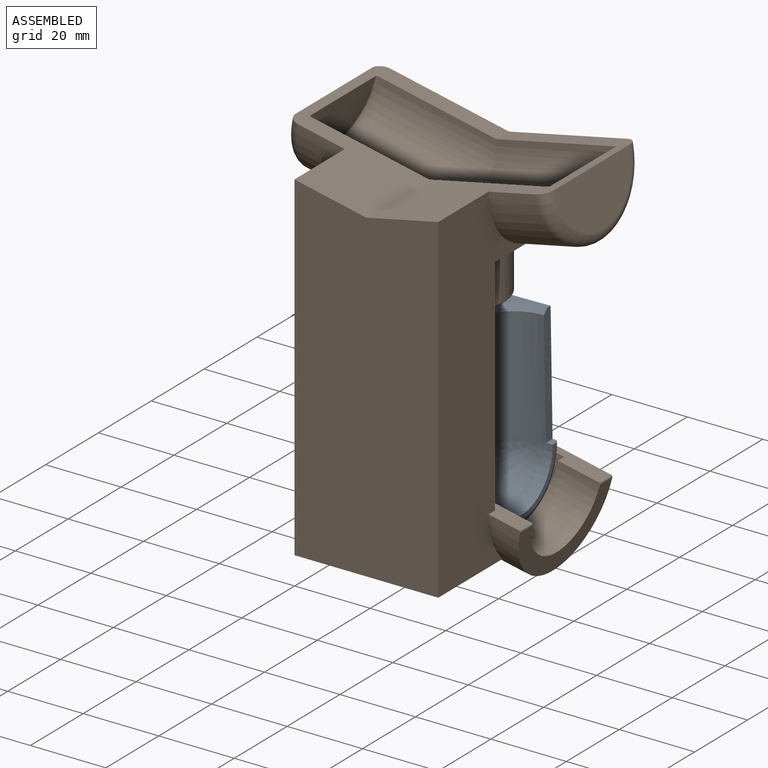
[diagram: assembled view]
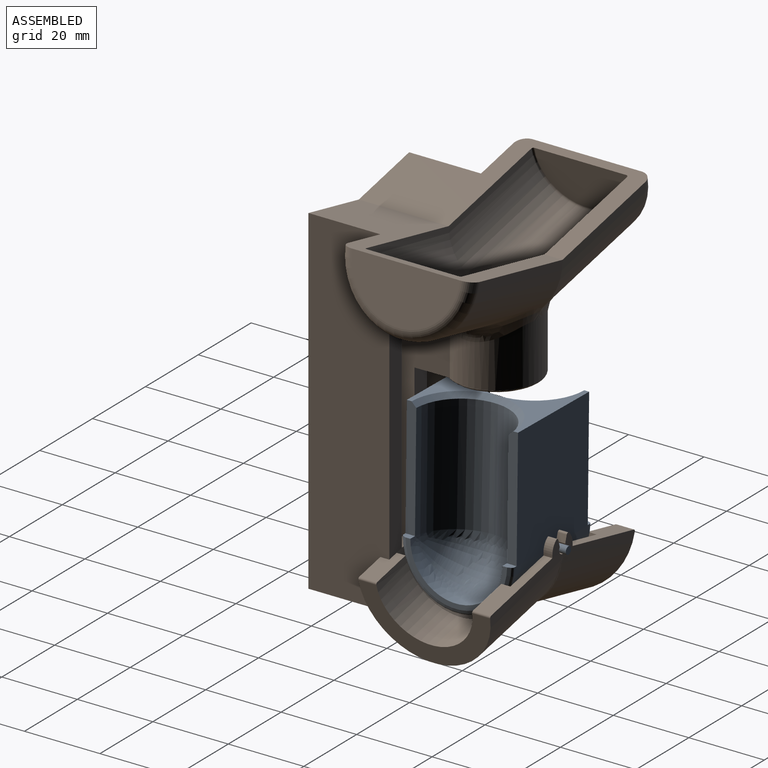
[diagram: assembled view, second angle]
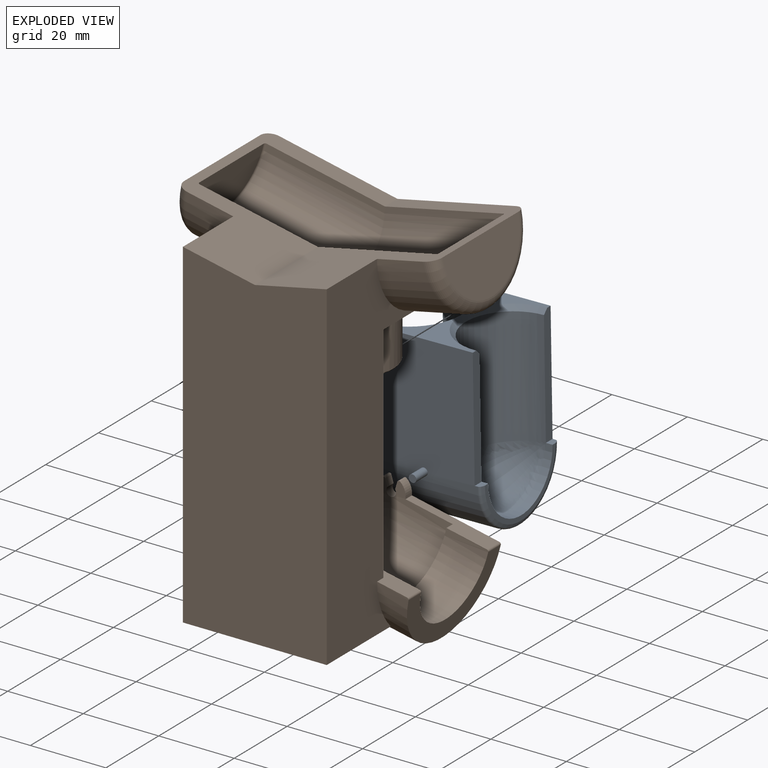
[diagram: exploded view]
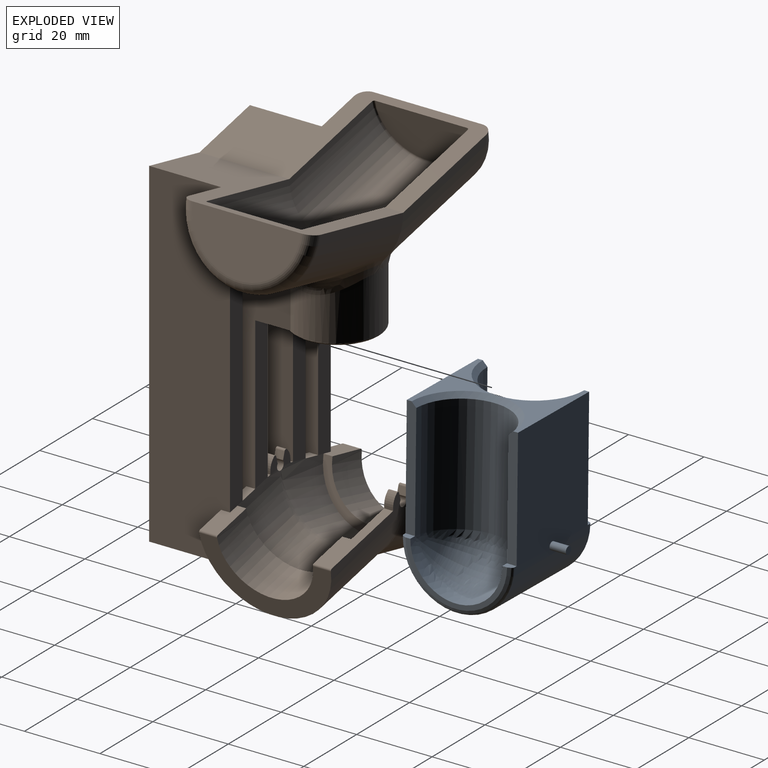
[diagram: exploded view, second angle]
ASSEMBLY  parts=2 mates=2
PART A: 31 faces, bbox 38.1x30.5x47.7 mm
  f0: plane 26.92x14.73mm, normal (0,0,1), area 112mm2, adj f17,f22,f23,f27,f28
  f1: cylinder r=12.19mm len=24.38mm, axis (0,1,0), area 86.7mm2, adj f4,f7,f11,f26
  f2: cylinder r=1.02mm len=4.35mm, axis (-1,0,0), area 27.6mm2, adj f8,f12,f16
  f3: plane 2.54x1.78mm, normal (0,0,1), area 4.1mm2, adj f6,f8,f10,f14,f22,f29
  f4: plane 2.54x1.78mm, normal (0,0,1), area 4.1mm2, adj f1,f8,f11,f15,f19,f30
  f5: cylinder r=1.02mm len=4.35mm, axis (-1,0,0), area 27.6mm2, adj f8,f13,f17
  f6: cylinder r=12.19mm len=24.38mm, axis (0,1,0), area 86.7mm2, adj f3,f9,f10,f25
  f7: plane 2.54x1.78mm, normal (0,0,1), area 4.1mm2, adj f1,f8,f11,f15,f23,f30
  f8: cylinder r=14.73mm len=29.46mm, axis (0,1,0), area 1312.7mm2, adj f2,f3,f4,f5,f7,f9,f16,f17
  f9: plane 2.54x1.78mm, normal (0,0,1), area 4.1mm2, adj f6,f8,f10,f14,f18,f29
  f10: plane 26.92x13.46mm, normal (0,-1,0), area 51.2mm2, adj f3,f6,f9,f14
  f11: plane 26.92x13.46mm, normal (0,1,0), area 51.2mm2, adj f1,f4,f7,f15
  f12: plane 2.03x2.03mm, normal (1,0,0), area 3.2mm2, adj f2
  f13: plane 2.03x2.03mm, normal (-1,0,0), area 3.2mm2, adj f5
  f14: cone r=13.46mm half-angle=68.2deg, axis (0,1,0), area 37.1mm2, adj f3,f9,f10,f29
  f15: cone r=14.73mm half-angle=68.2deg, axis (0,-1,0), area 37.1mm2, adj f4,f7,f11,f30
  f16: plane 31.75x26.92mm, normal (1,0,0), area 853.2mm2, adj f2,f8,f18,f19,f24
  f17: plane 31.75x26.92mm, normal (-1,0,0), area 853.2mm2, adj f0,f5,f8,f22,f23
  f18: plane 31.75x2.54mm, normal (0,-1,0), area 79.8mm2, adj f9,f16,f20,f24,f27
  f19: plane 31.75x2.54mm, normal (0,1,0), area 79.8mm2, adj f4,f16,f21,f24,f28
  f20: cylinder r=12.19mm len=31.24mm, axis (0,0,1), area 1186mm2, adj f18,f22,f25,f27
  f21: cylinder r=12.19mm len=31.24mm, axis (0,0,1), area 1186mm2, adj f19,f23,f26,f28
  f22: plane 31.75x2.54mm, normal (0,-1,0), area 79.8mm2, adj f0,f3,f17,f20,f27
  f23: plane 31.75x2.54mm, normal (0,1,0), area 79.8mm2, adj f0,f7,f17,f21,f28
  f24: plane 26.92x14.73mm, normal (0,0,1), area 112mm2, adj f16,f18,f19,f27,f28
  f25: bspline ~24.38x12.19mm, area 440.6mm2, adj f6,f20
  f26: bspline ~24.38x12.19mm, area 440.6mm2, adj f1,f21
  f27: cone r=13.46mm half-angle=45deg, axis (0,0,1), area 72.4mm2, adj f0,f18,f20,f22,f24
  f28: cone r=12.19mm half-angle=45deg, axis (0,0,1), area 72.4mm2, adj f0,f19,f21,f23,f24
  f29: torus R=13.97mm, axis (0,-1,0), area 41.5mm2, adj f3,f8,f9,f14
  f30: torus R=13.97mm, axis (0,1,0), area 41.5mm2, adj f4,f7,f8,f15
PART B: 124 faces, bbox 57x76.5x100.9 mm
  f0: plane 84.64x30.87mm, normal (0,1,0), area 1414.4mm2, adj f5,f9,f22,f28,f30,f32,f97,f116
  f1: plane 0.56x0.32mm, normal (0,1,0), area 0.1mm2, adj f7,f78,f119
  f2: plane 82.05x21.97mm, normal (0,1,0), area 1444.8mm2, adj f6,f8,f21,f25,f26,f27,f35,f98
  f3: plane 0.12x0.09mm, normal (0,-1,0), area 0mm2, adj f7,f78,f123
  f4: plane 83.26x26.48mm, normal (0,-1,0), area 1534.7mm2, adj f5,f9,f22,f26,f30,f32,f91,f98
  f5: plane 83.82x4.76mm, normal (1,0,0), area 396.8mm2, adj f0,f4,f116,f122
  f6: plane 81.79x9.53mm, normal (1,0,0), area 774.3mm2, adj f2,f17,f114,f115,f117
  f7: cylinder r=17.46mm len=34.93mm, axis (0,0.98,0.21), area 1055.7mm2, adj f1,f3,f19,f23,f36,f37,f39,f49
  f8: cylinder r=17.46mm len=14.94mm, axis (0,0.98,0.21), area 67mm2, adj f2,f20,f35,f60,f65,f117
  f9: cylinder r=17.46mm len=13.15mm, axis (0,0.98,0.21), area 61mm2, adj f0,f4,f32,f122
  f10: cylinder r=17.46mm len=34.93mm, axis (0,-0.98,0.21), area 1055.7mm2, adj f14,f16,f19,f43,f44,f45,f48,f49
  f11: cylinder r=17.46mm len=13.15mm, axis (0,-0.98,0.21), area 61mm2, adj f13,f15,f34,f121
  f12: cylinder r=17.46mm len=14.94mm, axis (0,-0.98,0.21), area 67mm2, adj f17,f20,f33,f59,f60,f117
  f13: plane 84.64x30.87mm, normal (0,-1,0), area 1414.4mm2, adj f11,f18,f34,f79,f107,f109,f112,f113
  f14: plane 0.12x0.09mm, normal (0,1,0), area 0mm2, adj f10,f78,f120
  f15: plane 83.26x26.48mm, normal (0,1,0), area 1534.7mm2, adj f11,f18,f34,f81,f91,f104,f109,f112
  f16: plane 0.56x0.32mm, normal (0,-1,0), area 0.1mm2, adj f10,f78,f118
  f17: plane 82.05x21.97mm, normal (0,-1,0), area 1444.8mm2, adj f6,f12,f27,f33,f81,f104,f108,f111
  f18: plane 83.82x4.76mm, normal (1,0,0), area 396.8mm2, adj f13,f15,f113,f121
  f19: bspline ~26.2x18.08mm, area 53.8mm2, adj f7,f10,f49,f118,f119
  f20: bspline ~15.36x8.32mm, area 14.4mm2, adj f8,f12,f60,f117
  f21: cylinder r=17.46mm len=11.5mm, axis (0,-0.98,0.21), area 55.4mm2, adj f2,f25,f108,f115
  f22: cylinder r=17.46mm len=15.56mm, axis (0,-0.98,0.21), area 88.6mm2, adj f0,f4,f30,f116
  f23: plane 91.53x38.07mm, normal (0,-1,0), area 1942.7mm2, adj f7,f24,f28,f29,f36,f78,f87,f97
  f24: plane 89.97x38.1mm, normal (-1,0,0), area 3350.6mm2, adj f23,f78,f80,f87,f105
  f25: bspline ~9.54x4.46mm, area 20.6mm2, adj f2,f21,f27,f111
  f26: plane 40.35x4.76mm, normal (1,0,0), area 189.8mm2, adj f2,f4,f40,f98
  f27: cylinder r=11.11mm len=14.71mm, axis (0,0,-1), area 144.6mm2, adj f2,f17,f25,f96,f111
  f28: plane 59.41x4.76mm, normal (1,0,0), area 278.1mm2, adj f0,f23,f36,f40,f97
  f29: cylinder r=17.46mm len=37.4mm, axis (0,-0.98,0.21), area 1167.6mm2, adj f23,f30,f87,f95,f97,f106
  f30: bspline ~23.21x17.41mm, area 162.3mm2, adj f0,f4,f22,f29,f91,f97,f112
  f31: cylinder r=12.7mm len=35.92mm, axis (0,-0.98,0.21), area 1200.2mm2, adj f87,f93,f94,f110
  f32: plane 4.76x2.38mm, normal (0,-0.21,0.98), area 11.6mm2, adj f0,f4,f9,f40
  f33: plane 2.38x0.95mm, normal (0,0.21,0.98), area 2.3mm2, adj f12,f17,f46,f63
  f34: plane 4.76x2.38mm, normal (0,0.21,0.98), area 11.6mm2, adj f11,f13,f15,f46
  f35: plane 2.38x0.95mm, normal (0,-0.21,0.98), area 2.3mm2, adj f2,f8,f40,f69
  f36: plane 10.68x4.76mm, normal (0,-0.21,0.98), area 45.3mm2, adj f7,f23,f28,f38,f41,f84
  f37: plane 23.18x4.93mm, normal (0,-0.21,0.98), area 82.4mm2, adj f7,f38,f40,f41,f57,f85
  f38: cylinder r=12.7mm len=25.4mm, axis (0,0.98,0.21), area 455.8mm2, adj f36,f37,f39,f41,f84,f85
  f39: plane 34.91x16.58mm, normal (0,-0.98,-0.21), area 220.8mm2, adj f7,f38,f84,f85
  f40: cylinder r=15.08mm len=30.16mm, axis (0,0.98,0.21), area 659mm2, adj f26,f28,f32,f35,f37,f41,f49,f58
  f41: plane 30.16x14.75mm, normal (0,0.98,0.21), area 103.9mm2, adj f36,f37,f38,f40
  f42: cylinder r=12.7mm len=25.4mm, axis (0,-0.98,0.21), area 455.8mm2, adj f43,f44,f45,f47,f82,f83
  f43: plane 23.18x4.93mm, normal (0,0.21,0.98), area 82.4mm2, adj f10,f42,f46,f47,f51,f82
  f44: plane 10.68x4.76mm, normal (0,0.21,0.98), area 45.3mm2, adj f10,f42,f47,f79,f80,f83
  f45: plane 34.91x16.58mm, normal (0,0.98,-0.21), area 220.8mm2, adj f10,f42,f82,f83
  f46: cylinder r=15.08mm len=30.16mm, axis (0,-0.98,0.21), area 659mm2, adj f33,f34,f43,f47,f49,f53,f60,f61
  f47: plane 30.16x14.75mm, normal (0,-0.98,0.21), area 103.9mm2, adj f42,f43,f44,f46
  f48: plane 3.89x2.77mm, normal (1,0,0), area 7.6mm2, adj f10,f49,f50,f51,f52,f73,f77
  f49: cylinder r=1.27mm len=2.54mm, axis (-1,0,0), area 12.9mm2, adj f7,f10,f19,f40,f46,f48,f53,f54
  f50: plane 2.38x1.84mm, normal (0,-0.96,0.28), area 4.6mm2, adj f48,f53,f73,f77
  f51: plane 2.38x0.81mm, normal (0,1,0), area 1.9mm2, adj f43,f48,f52,f53
  f52: cylinder r=3.81mm len=2.97mm, axis (-1,0,0), area 8.1mm2, adj f48,f51,f53,f73
  f53: plane 3.89x2.77mm, normal (-1,0,0), area 7.6mm2, adj f46,f49,f50,f51,f52,f73,f77
  f54: plane 3.89x2.77mm, normal (1,0,0), area 7.6mm2, adj f7,f49,f55,f56,f57,f72,f76
  f55: plane 2.38x1.84mm, normal (0,0.96,0.28), area 4.6mm2, adj f54,f58,f72,f76
  f56: cylinder r=3.81mm len=2.97mm, axis (-1,0,0), area 8.1mm2, adj f54,f57,f58,f72
  f57: plane 2.38x0.81mm, normal (0,-1,0), area 1.9mm2, adj f37,f54,f56,f58
  f58: plane 3.89x2.77mm, normal (-1,0,0), area 7.6mm2, adj f40,f49,f55,f56,f57,f72,f76
  f59: plane 3.89x2.77mm, normal (-1,0,0), area 7.6mm2, adj f12,f60,f62,f63,f64,f71,f75
  f60: cylinder r=1.27mm len=2.54mm, axis (1,0,0), area 12.9mm2, adj f8,f12,f20,f40,f46,f59,f61,f65
  f61: plane 3.89x2.77mm, normal (1,0,0), area 7.6mm2, adj f46,f60,f62,f63,f64,f71,f75
  f62: plane 2.38x1.84mm, normal (0,-0.96,0.28), area 4.6mm2, adj f59,f61,f71,f75
  f63: plane 2.38x0.81mm, normal (0,1,0), area 1.9mm2, adj f33,f59,f61,f64
  f64: cylinder r=3.81mm len=2.97mm, axis (1,0,0), area 8.1mm2, adj f59,f61,f63,f71
  f65: plane 3.89x2.77mm, normal (-1,0,0), area 7.6mm2, adj f8,f60,f66,f67,f69,f70,f74
  f66: plane 2.38x1.84mm, normal (0,0.96,0.28), area 4.6mm2, adj f65,f68,f70,f74
  f67: cylinder r=3.81mm len=2.97mm, axis (1,0,0), area 8.1mm2, adj f65,f68,f69,f70
  f68: plane 3.89x2.77mm, normal (1,0,0), area 7.6mm2, adj f40,f60,f66,f67,f69,f70,f74
  f69: plane 2.38x0.81mm, normal (0,-1,0), area 1.9mm2, adj f35,f65,f67,f68
  f70: cylinder r=0.51mm len=2.38mm, axis (1,0,0), area 2.4mm2, adj f65,f66,f67,f68
  f71: cylinder r=0.51mm len=2.38mm, axis (1,0,0), area 2.4mm2, adj f59,f61,f62,f64
  f72: cylinder r=0.51mm len=2.38mm, axis (-1,0,0), area 2.4mm2, adj f54,f55,f56,f58
  f73: cylinder r=0.51mm len=2.38mm, axis (-1,0,0), area 2.4mm2, adj f48,f50,f52,f53
  f74: cylinder r=0.25mm len=2.38mm, axis (1,0,0), area 0.5mm2, adj f60,f65,f66,f68
  f75: cylinder r=0.25mm len=2.38mm, axis (1,0,0), area 0.5mm2, adj f59,f60,f61,f62
  f76: cylinder r=0.25mm len=2.38mm, axis (-1,0,0), area 0.5mm2, adj f49,f54,f55,f58
  f77: cylinder r=0.25mm len=2.38mm, axis (-1,0,0), area 0.5mm2, adj f48,f49,f50,f53
  f78: plane 38.21x29mm, normal (0,0,-1), area 1013.6mm2, adj f1,f3,f7,f10,f14,f16,f23,f24
  f79: plane 59.41x4.76mm, normal (1,0,0), area 278.1mm2, adj f13,f44,f46,f80,f107
  f80: plane 91.53x38.07mm, normal (0,1,0), area 1942.7mm2, adj f10,f24,f44,f78,f79,f105,f106,f107
  f81: plane 40.35x4.76mm, normal (1,0,0), area 189.8mm2, adj f15,f17,f46,f104
  f82: cylinder r=0.51mm len=4.77mm, axis (-1,0,0), area 3.8mm2, adj f10,f42,f43,f45
  f83: cylinder r=0.51mm len=4.77mm, axis (-1,0,0), area 3.8mm2, adj f10,f42,f44,f45
  f84: cylinder r=0.51mm len=4.77mm, axis (-1,0,0), area 3.8mm2, adj f7,f36,f38,f39
  f85: cylinder r=0.51mm len=4.77mm, axis (-1,0,0), area 3.8mm2, adj f7,f37,f38,f39
  f86: bspline ~30.16x15.64mm, area 64.4mm2, adj f40,f46,f49,f60
  f87: plane 53.98x34.23mm, normal (0,0.21,0.98), area 765mm2, adj f23,f24,f29,f31,f88,f89,f94,f95
  f88: plane 24.38x11.93mm, normal (0,0.98,-0.21), area 233.5mm2, adj f87,f94
  f89: plane 28.83x14.1mm, normal (0,-0.98,0.21), area 326.4mm2, adj f87,f95
  f90: cylinder r=6.35mm len=17.43mm, axis (0,0,-1), area 695.3mm2, adj f92,f93,f103
  f91: cylinder r=11.11mm len=22.23mm, axis (0,0,-1), area 631.5mm2, adj f4,f15,f30,f96,f112
  f92: plane 21.21x21.21mm, normal (0,0,-1), area 226.6mm2, adj f90,f96
  f93: bspline ~16.35x12.41mm, area 130mm2, adj f31,f90,f103
  f94: torus R=12.19mm, axis (0,-0.98,0.21), area 31.4mm2, adj f31,f87,f88
  f95: torus R=14.41mm, axis (0,-0.98,0.21), area 246mm2, adj f29,f87,f89
  f96: torus R=10.6mm, axis (0,0,1), area 54.8mm2, adj f27,f91,f92,f98,f104
  f97: plane 15.12x4.8mm, normal (0,-0.21,-0.98), area 72.5mm2, adj f0,f23,f28,f29,f30
  f98: plane 9.36x4.76mm, normal (0,0,-1), area 32.2mm2, adj f2,f4,f26,f96
  f99: plane 24.38x11.93mm, normal (0,-0.98,-0.21), area 233.5mm2, adj f100,f105
  f100: torus R=12.19mm, axis (0,0.98,0.21), area 31.4mm2, adj f99,f105,f110
  f101: torus R=14.41mm, axis (0,0.98,0.21), area 246mm2, adj f102,f105,f106
  f102: plane 28.83x14.1mm, normal (0,0.98,0.21), area 326.4mm2, adj f101,f105
  f103: bspline ~16.35x12.41mm, area 130mm2, adj f90,f93,f110
  f104: plane 9.36x4.76mm, normal (0,0,-1), area 32.2mm2, adj f15,f17,f81,f96
  f105: plane 53.98x34.23mm, normal (0,-0.21,0.98), area 765mm2, adj f24,f80,f87,f99,f100,f101,f102,f106
  f106: cylinder r=17.46mm len=37.4mm, axis (0,0.98,0.21), area 1167.6mm2, adj f29,f80,f101,f105,f107,f112
  f107: plane 15.12x4.8mm, normal (0,0.21,-0.98), area 72.5mm2, adj f13,f79,f80,f106,f112
  f108: cylinder r=17.46mm len=11.5mm, axis (0,0.98,0.21), area 55.4mm2, adj f17,f21,f111,f114
  f109: cylinder r=17.46mm len=15.56mm, axis (0,0.98,0.21), area 88.6mm2, adj f13,f15,f112,f113
  f110: cylinder r=12.7mm len=35.92mm, axis (0,0.98,0.21), area 1200.2mm2, adj f31,f100,f103,f105
  f111: bspline ~9.54x4.46mm, area 20.6mm2, adj f17,f25,f27,f108
  f112: bspline ~23.21x17.39mm, area 162.3mm2, adj f13,f15,f30,f91,f106,f107,f109
  f113: plane 14.47x4.76mm, normal (0,0.21,-0.98), area 70.5mm2, adj f13,f15,f18,f109
  f114: plane 14.47x4.76mm, normal (0,0.21,-0.98), area 70.5mm2, adj f6,f17,f108,f115
  f115: plane 14.47x4.76mm, normal (0,-0.21,-0.98), area 70.5mm2, adj f2,f6,f21,f114
  f116: plane 14.47x4.76mm, normal (0,-0.21,-0.98), area 70.5mm2, adj f0,f4,f5,f22
  f117: plane 21.15x9.61mm, normal (0,0,1), area 195.8mm2, adj f2,f6,f8,f12,f17,f20
  f118: plane 4.8x1.22mm, normal (0.97,0.24,0), area 2.4mm2, adj f10,f16,f19,f78,f119
  f119: plane 4.8x1.22mm, normal (0.97,-0.24,0), area 2.4mm2, adj f1,f7,f19,f78,f118
  f120: plane 4.85x1.27mm, normal (0.97,0.24,0), area 0.1mm2, adj f10,f14,f78
  f121: plane 19.06x4.84mm, normal (0,0,1), area 88.3mm2, adj f11,f13,f15,f18
  f122: plane 19.06x4.84mm, normal (0,0,1), area 88.3mm2, adj f0,f4,f5,f9
  f123: plane 4.85x1.27mm, normal (0.97,-0.24,0), area 0.1mm2, adj f3,f7,f78
PLACE A rot(axis=(0.01,-0.01,-1),90deg) t=(0.21,15.08,-12.98)mm
PLACE B rot(axis=(0,0,1),90deg) t=(0,15.08,-12.98)mm
MATE cylindrical A.f2 <-> B.f49  axis (0,1,0) through (0,-3.97,0)mm
MATE parallel B.f49 <-> A.f2  axis (0,1,0) through (0,15.08,0)mm
